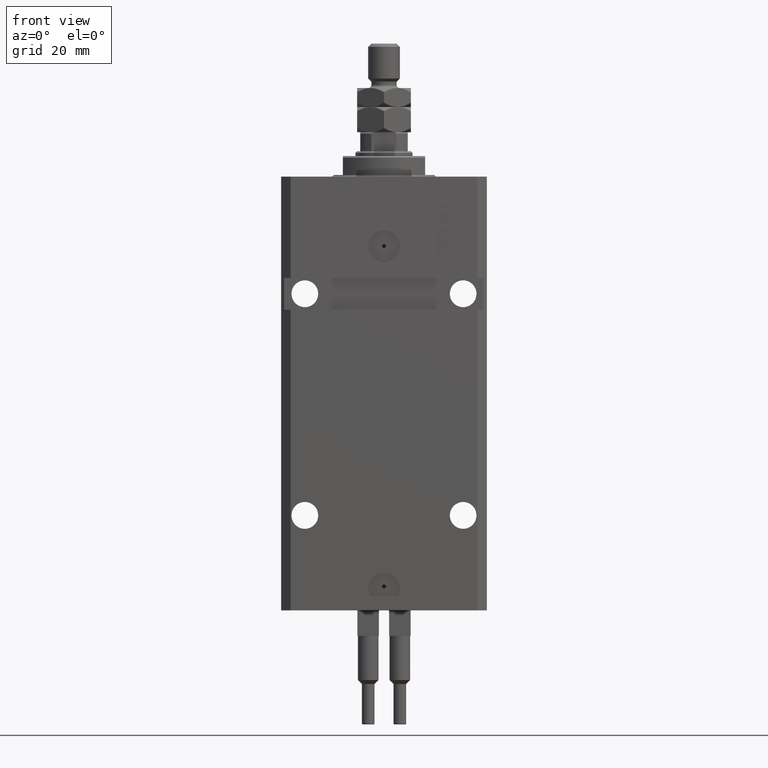
[diagram: clean part render]
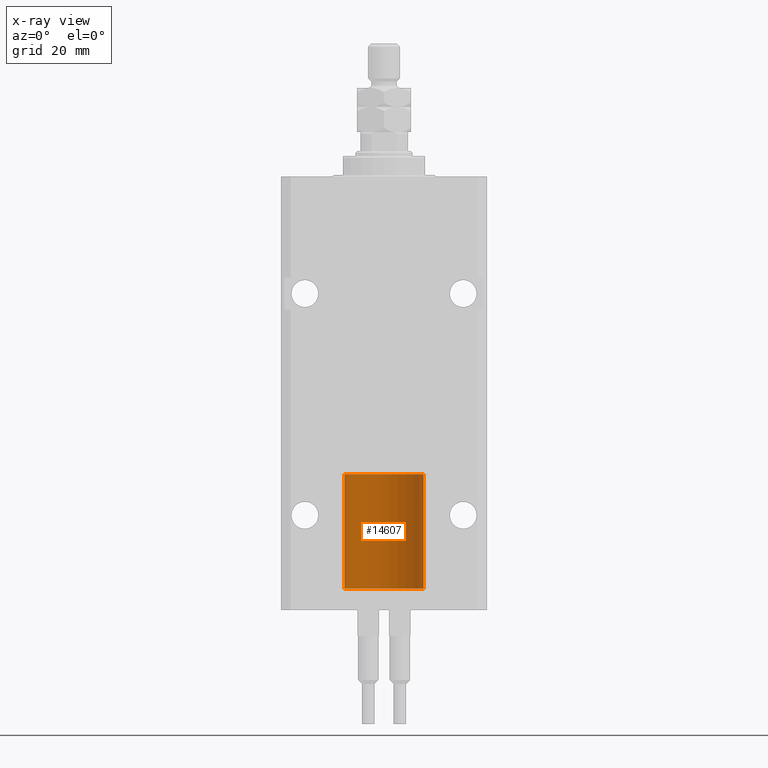
[diagram: x-ray — body ghosted, one internal face saturated and labeled with its STEP entity id]
A machine part, front view, then the same camera in x-ray: the body is ghosted and one INTERNAL B-rep face — a face not visible from any outside direction — is saturated and labeled: STEP entity #14607.
In plain terms, the highlighted cylindrical surface (partial cylindrical patch) has radius 12.5 mm, axis along (-0, -0, -1).
Its self-contained STEP definition (entity closure, byte-faithful):
#537 = ORIENTED_EDGE ( 'NONE', *, *, #6177, .T. ) ;
#848 = AXIS2_PLACEMENT_3D ( 'NONE', #894, #31589, #44135 ) ;
#894 = CARTESIAN_POINT ( 'NONE',  ( 0.000000000000000000, 0.000000000000000000, 36.10000000000000142 ) ) ;
#2206 = DIRECTION ( 'NONE',  ( -1.000000000000000000, 0.000000000000000000, 0.000000000000000000 ) ) ;
#5782 = EDGE_CURVE ( 'NONE', #32733, #47559, #30935, .T. ) ;
#6177 = EDGE_CURVE ( 'NONE', #47559, #46993, #39450, .T. ) ;
#6492 = CARTESIAN_POINT ( 'NONE',  ( -12.50000000000000000, 0.000000000000000000, 0.000000000000000000 ) ) ;
#7374 = CIRCLE ( 'NONE', #848, 12.50000000000000000 ) ;
#13818 = VECTOR ( 'NONE', #14600, 1000.000000000000000 ) ;
#14600 = DIRECTION ( 'NONE',  ( -0.000000000000000000, -0.000000000000000000, -1.000000000000000000 ) ) ;
#14607 = ADVANCED_FACE ( 'NONE', ( #48536 ), #44693, .T. ) ;
#14920 = VECTOR ( 'NONE', #49916, 1000.000000000000000 ) ;
#17812 = DIRECTION ( 'NONE',  ( -0.000000000000000000, -0.000000000000000000, -1.000000000000000000 ) ) ;
#19032 = ORIENTED_EDGE ( 'NONE', *, *, #50009, .F. ) ;
#30935 = LINE ( 'NONE', #34033, #14920 ) ;
#31589 = DIRECTION ( 'NONE',  ( 0.000000000000000000, 0.000000000000000000, 1.000000000000000000 ) ) ;
#31793 = ORIENTED_EDGE ( 'NONE', *, *, #50535, .F. ) ;
#32733 = VERTEX_POINT ( 'NONE', #46675 ) ;
#34033 = CARTESIAN_POINT ( 'NONE',  ( 12.50000000000000000, 1.530808498934191521E-15, 36.10000000000000142 ) ) ;
#34075 = LINE ( 'NONE', #49707, #13818 ) ;
#34259 = VERTEX_POINT ( 'NONE', #36525 ) ;
#36525 = CARTESIAN_POINT ( 'NONE',  ( -12.50000000000000000, 0.000000000000000000, 36.10000000000000142 ) ) ;
#38851 = EDGE_LOOP ( 'NONE', ( #19032, #49286, #537, #31793 ) ) ;
#39065 = DIRECTION ( 'NONE',  ( 0.000000000000000000, 0.000000000000000000, 1.000000000000000000 ) ) ;
#39450 = CIRCLE ( 'NONE', #45996, 12.50000000000000000 ) ;
#40519 = CARTESIAN_POINT ( 'NONE',  ( 0.000000000000000000, 0.000000000000000000, 0.000000000000000000 ) ) ;
#42902 = DIRECTION ( 'NONE',  ( 1.000000000000000000, 0.000000000000000000, 0.000000000000000000 ) ) ;
#43706 = CARTESIAN_POINT ( 'NONE',  ( 12.50000000000000000, 1.530808498934191521E-15, 0.000000000000000000 ) ) ;
#44135 = DIRECTION ( 'NONE',  ( 1.000000000000000000, 0.000000000000000000, 0.000000000000000000 ) ) ;
#44436 = CARTESIAN_POINT ( 'NONE',  ( 0.000000000000000000, 0.000000000000000000, 36.10000000000000142 ) ) ;
#44693 = CYLINDRICAL_SURFACE ( 'NONE', #50319, 12.50000000000000000 ) ;
#45996 = AXIS2_PLACEMENT_3D ( 'NONE', #40519, #39065, #42902 ) ;
#46675 = CARTESIAN_POINT ( 'NONE',  ( 12.50000000000000000, 1.530808498934191521E-15, 36.10000000000000142 ) ) ;
#46993 = VERTEX_POINT ( 'NONE', #6492 ) ;
#47559 = VERTEX_POINT ( 'NONE', #43706 ) ;
#48536 = FACE_OUTER_BOUND ( 'NONE', #38851, .T. ) ;
#49286 = ORIENTED_EDGE ( 'NONE', *, *, #5782, .T. ) ;
#49707 = CARTESIAN_POINT ( 'NONE',  ( -12.50000000000000000, 0.000000000000000000, 36.10000000000000142 ) ) ;
#49916 = DIRECTION ( 'NONE',  ( -0.000000000000000000, -0.000000000000000000, -1.000000000000000000 ) ) ;
#50009 = EDGE_CURVE ( 'NONE', #32733, #34259, #7374, .T. ) ;
#50319 = AXIS2_PLACEMENT_3D ( 'NONE', #44436, #17812, #2206 ) ;
#50535 = EDGE_CURVE ( 'NONE', #34259, #46993, #34075, .T. ) ;